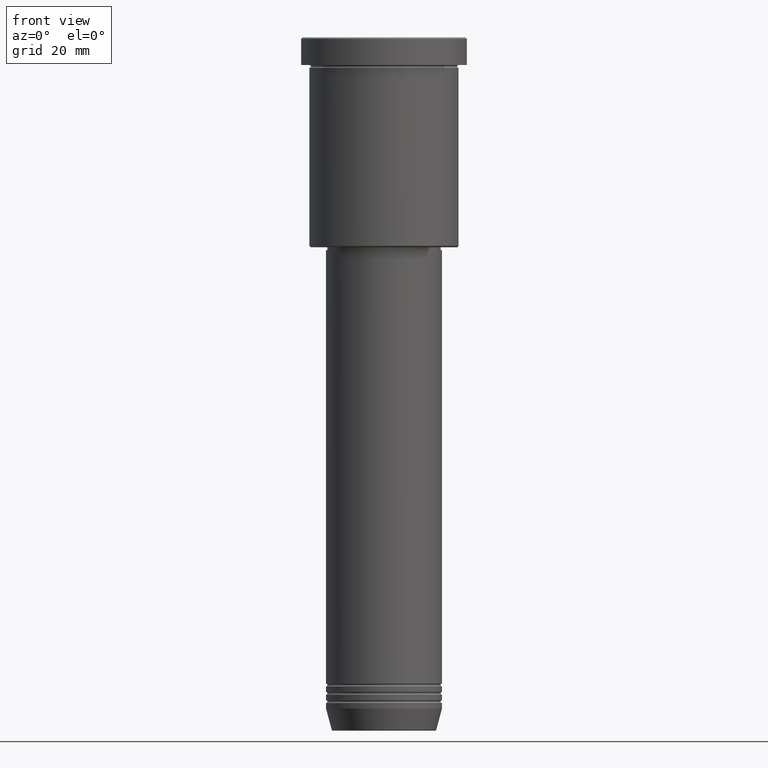
[diagram: clean part render]
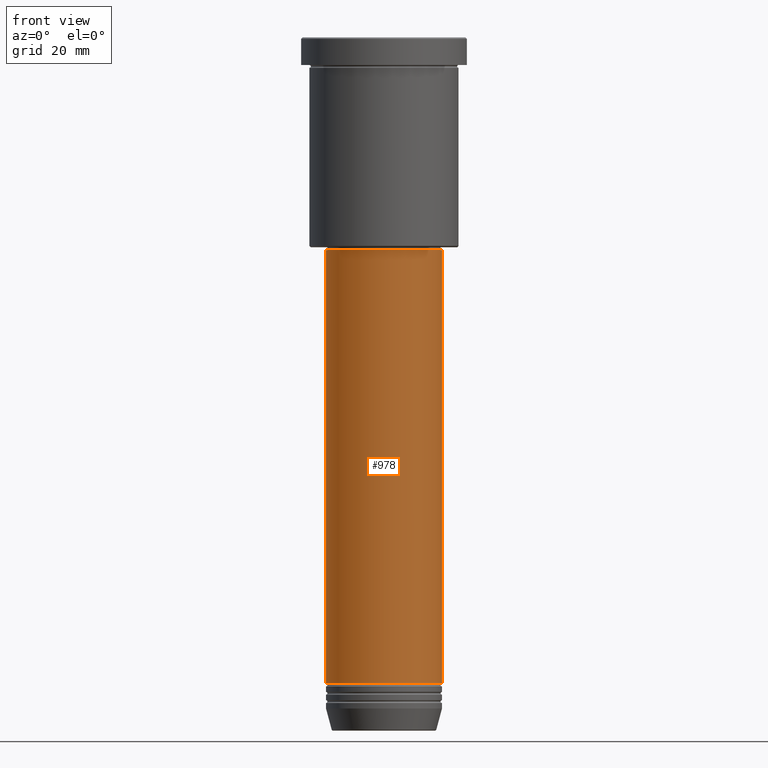
[diagram: same view with one face highlighted and labeled with its STEP entity id]
A machine part, front view. The second image highlights one B-rep face of the part: STEP entity #978.
In plain terms, the highlighted cylindrical surface (partial cylindrical patch) has radius 21 mm, axis along (-0, -0, 1).
Its self-contained STEP definition (entity closure, byte-faithful):
#74 = EDGE_CURVE ( 'NONE', #205, #774, #413, .T. ) ;
#81 = DIRECTION ( 'NONE',  ( 1.000000000000000000, 0.000000000000000000, 0.000000000000000000 ) ) ;
#186 = DIRECTION ( 'NONE',  ( 1.000000000000000000, 0.000000000000000000, 0.000000000000000000 ) ) ;
#205 = VERTEX_POINT ( 'NONE', #258 ) ;
#219 = VECTOR ( 'NONE', #251, 1000.000000000000000 ) ;
#234 = CARTESIAN_POINT ( 'NONE',  ( 0.000000000000000000, 0.000000000000000000, -234.0000000000000000 ) ) ;
#238 = DIRECTION ( 'NONE',  ( -0.000000000000000000, -0.000000000000000000, 1.000000000000000000 ) ) ;
#240 = ORIENTED_EDGE ( 'NONE', *, *, #74, .T. ) ;
#251 = DIRECTION ( 'NONE',  ( -0.000000000000000000, -0.000000000000000000, 1.000000000000000000 ) ) ;
#258 = CARTESIAN_POINT ( 'NONE',  ( -21.00000000000000000, 2.571758278209441661E-15, -234.0000000000000000 ) ) ;
#294 = AXIS2_PLACEMENT_3D ( 'NONE', #893, #884, #81 ) ;
#300 = DIRECTION ( 'NONE',  ( -0.000000000000000000, -0.000000000000000000, 1.000000000000000000 ) ) ;
#305 = CARTESIAN_POINT ( 'NONE',  ( 0.000000000000000000, 0.000000000000000000, -77.00000000000001421 ) ) ;
#385 = CARTESIAN_POINT ( 'NONE',  ( -21.00000000000000000, 2.571758278209441661E-15, 0.000000000000000000 ) ) ;
#393 = AXIS2_PLACEMENT_3D ( 'NONE', #234, #238, #1041 ) ;
#413 = CIRCLE ( 'NONE', #393, 21.00000000000000000 ) ;
#477 = VERTEX_POINT ( 'NONE', #695 ) ;
#495 = CARTESIAN_POINT ( 'NONE',  ( 21.00000000000000000, 0.000000000000000000, -234.0000000000000000 ) ) ;
#503 = VERTEX_POINT ( 'NONE', #901 ) ;
#534 = ORIENTED_EDGE ( 'NONE', *, *, #1064, .T. ) ;
#561 = LINE ( 'NONE', #385, #998 ) ;
#591 = AXIS2_PLACEMENT_3D ( 'NONE', #305, #300, #186 ) ;
#622 = LINE ( 'NONE', #1158, #219 ) ;
#695 = CARTESIAN_POINT ( 'NONE',  ( 21.00000000000000000, 0.000000000000000000, -77.00000000000001421 ) ) ;
#710 = EDGE_CURVE ( 'NONE', #205, #503, #561, .T. ) ;
#747 = DIRECTION ( 'NONE',  ( -0.000000000000000000, -0.000000000000000000, 1.000000000000000000 ) ) ;
#760 = EDGE_CURVE ( 'NONE', #503, #477, #773, .T. ) ;
#773 = CIRCLE ( 'NONE', #591, 21.00000000000000000 ) ;
#774 = VERTEX_POINT ( 'NONE', #495 ) ;
#884 = DIRECTION ( 'NONE',  ( -0.000000000000000000, -0.000000000000000000, 1.000000000000000000 ) ) ;
#893 = CARTESIAN_POINT ( 'NONE',  ( 0.000000000000000000, 0.000000000000000000, 0.000000000000000000 ) ) ;
#899 = CYLINDRICAL_SURFACE ( 'NONE', #294, 21.00000000000000000 ) ;
#901 = CARTESIAN_POINT ( 'NONE',  ( -21.00000000000000000, 2.571758278209441661E-15, -77.00000000000001421 ) ) ;
#978 = ADVANCED_FACE ( 'NONE', ( #1166 ), #899, .T. ) ;
#998 = VECTOR ( 'NONE', #747, 1000.000000000000000 ) ;
#1007 = EDGE_LOOP ( 'NONE', ( #1076, #240, #534, #1019 ) ) ;
#1019 = ORIENTED_EDGE ( 'NONE', *, *, #760, .F. ) ;
#1041 = DIRECTION ( 'NONE',  ( 1.000000000000000000, 0.000000000000000000, 0.000000000000000000 ) ) ;
#1064 = EDGE_CURVE ( 'NONE', #774, #477, #622, .T. ) ;
#1076 = ORIENTED_EDGE ( 'NONE', *, *, #710, .F. ) ;
#1158 = CARTESIAN_POINT ( 'NONE',  ( 21.00000000000000000, 0.000000000000000000, 0.000000000000000000 ) ) ;
#1166 = FACE_OUTER_BOUND ( 'NONE', #1007, .T. ) ;